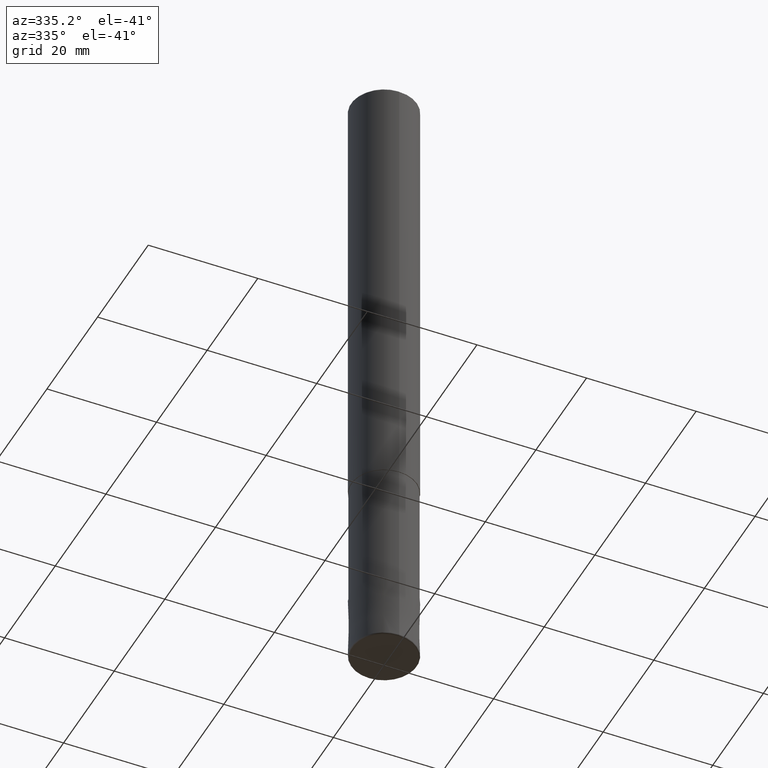
[diagram: clean part render]
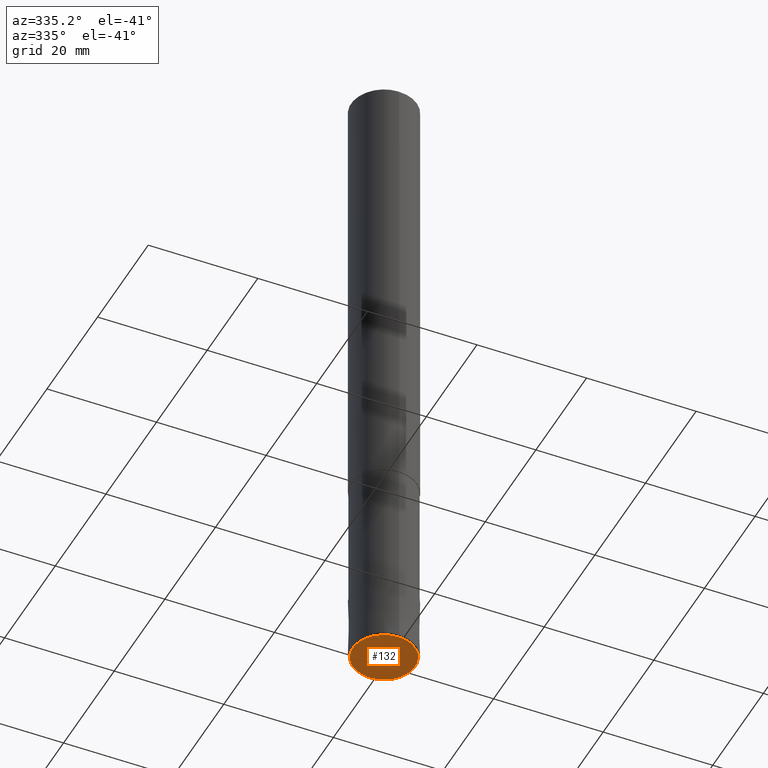
[diagram: same view with one face highlighted and labeled with its STEP entity id]
A machine part, auxiliary view. The second image highlights one B-rep face of the part: STEP entity #132.
In plain terms, the highlighted planar face has unit normal (0, 0, -1).
Its self-contained STEP definition (entity closure, byte-faithful):
#104=VERTEX_POINT('',#241);
#132=ADVANCED_FACE('',(#275),#276,.T.);
#134=VERTEX_POINT('',#278);
#136=EDGE_CURVE('',#104,#134,#280,.T.);
#138=EDGE_CURVE('',#134,#104,#282,.T.);
#241=CARTESIAN_POINT('',(6.98025621678755E-016,-5.7,-120.0));
#275=FACE_OUTER_BOUND('',#434,.T.);
#276=PLANE('',#435);
#278=CARTESIAN_POINT('',(0.0,5.7,-120.0));
#280=CIRCLE('',#440,5.7);
#282=CIRCLE('',#443,5.7);
#434=EDGE_LOOP('',(#601,#602));
#435=AXIS2_PLACEMENT_3D('',#603,#604,#605);
#440=AXIS2_PLACEMENT_3D('',#606,#607,#608);
#443=AXIS2_PLACEMENT_3D('',#609,#610,#611);
#601=ORIENTED_EDGE('',*,*,#138,.T.);
#602=ORIENTED_EDGE('',*,*,#136,.T.);
#603=CARTESIAN_POINT('',(0.0,2.85,-120.0));
#604=DIRECTION('',(0.0,0.0,-1.0));
#605=DIRECTION('',(0.0,1.0,0.0));
#606=CARTESIAN_POINT('',(0.0,0.0,-120.0));
#607=DIRECTION('',(0.0,0.0,-1.0));
#608=DIRECTION('',(0.0,1.0,0.0));
#609=CARTESIAN_POINT('',(0.0,0.0,-120.0));
#610=DIRECTION('',(0.0,0.0,-1.0));
#611=DIRECTION('',(0.0,1.0,0.0));